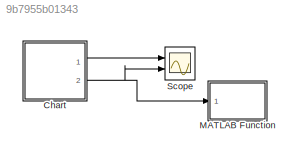
MODEL slx_9b7955b01343
KIND model
CONFIG AbsTol = auto
CONFIG EnableMultiTasking = off
CONFIG FixedStep = auto
CONFIG MaxStep = auto
CONFIG MinStep = auto
CONFIG RelTol = 1e-3
CONFIG SampleTimeConstraint = Unconstrained
CONFIG Solver = VariableStepAuto
CONFIG SolverName = VariableStepAuto
CONFIG StartTime = 0.0
CONFIG StopTime = 40.0
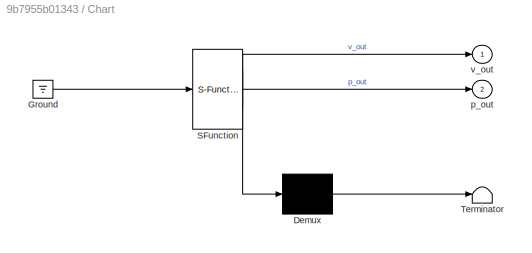
BLOCK [SubSystem] Chart
  ErrorFcn = Stateflow.Translate.translate
  PermitHierarchicalResolution = ExplicitOnly
  Ports = [0, 2]
  RequestExecContextInheritance = off
  SFBlockType = Chart
  TreatAsAtomicUnit = on
BLOCK [Demux] Chart/ Demux 
  Outputs = 1
  Ports = [1, 1]
BLOCK [Ground] Chart/ Ground 
BLOCK [S-Function] Chart/ SFunction 
  EnableBusSupport = on
  FunctionName = sf_sfun
  PortCounts = [1 3]
  Ports = [1, 3]
  SFcnIsStateOwnerBlock = off
  SFunctionDeploymentMode = off
  Tag = Stateflow S-Function 3
BLOCK [Terminator] Chart/ Terminator 
BLOCK [Outport] Chart/p_out
  Port = 2
BLOCK [Outport] Chart/v_out
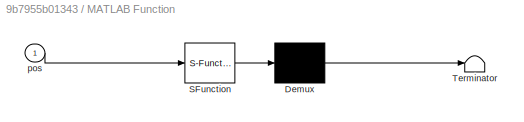
BLOCK [SubSystem] MATLAB Function
  ErrorFcn = Stateflow.Translate.translate
  PermitHierarchicalResolution = ExplicitOnly
  Ports = [1]
  RequestExecContextInheritance = off
  SFBlockType = MATLAB Function
  TreatAsAtomicUnit = on
BLOCK [Demux] MATLAB Function/ Demux 
  Outputs = 1
  Ports = [1, 1]
BLOCK [S-Function] MATLAB Function/ SFunction 
  EnableBusSupport = on
  FunctionName = sf_sfun
  PortCounts = [1 1]
  Ports = [1, 1]
  SFcnIsStateOwnerBlock = off
  SFunctionDeploymentMode = off
  Tag = Stateflow S-Function 2
BLOCK [Terminator] MATLAB Function/ Terminator 
BLOCK [Inport] MATLAB Function/pos
BLOCK [Scope] Scope
  Floating = off
  NumInputPorts = 2
  Ports = [2]
  ScopeSpecificationString = Simulink.scopes.TimeScopeBlockCfg('CurrentConfiguration', extmgr.ConfigurationSet(extmgr.Configuration('Core','General UI',true),extmgr.Configuration('Core','Source UI',true),extmgr.Configuration('Sources','WiredSimulink',true),extmgr.Configuration('Visuals','Time Domain',true,'SerializedDisplays',{struct('MinYLimReal','-0.845','MaxYLimReal','1.205','YLabelReal','','MinYLimMag','0.00000','MaxYLimM...<+2062ch>
LINE Chart:1 -> Scope:1
NET Chart:2 -> MATLAB Function:1, Scope:2
note: NET lines group one-source signal fan-out (src -> all destinations, sorted); 1:1 wires keep LINE
CHART MATLAB Function states=1 transitions=1
  STATE_LABEL 'eML_blk_kernel()'
  STATE_LABEL "SCRIPT:\nfunction plottable(pos)\n\nfigure (1)\nplot (pos(1,1), pos(1,2),'ro')\n% hold on\n% BorX=[0 0 2 2 0];\n% BorY=[1 0 0 1 1];\n% plot(BorX,BorY);\n% hold on;\n% area(BorX,BorY)\ntitle('\\bfBilliard Table','FontSize',14)\nxlim([0 2])\nylim ([0 1])\ngrid on\nbox on\n\n\n"
CHART Chart states=5 transitions=3
  STATE_LABEL 'Falling\ndu:\np_dot = v;\nv_dot = 0;\np_out = p;\nv_out = v;\n'
  STATE_LABEL 'initialize'
  STATE_LABEL 'SCRIPT:\nfunction initialize\n\np = [1 2]; %initial position of the ball in the board \nv = [1 1]; %initial velocity of the ball in x-y direction\ntableLen= 2; %length of the table\ntableWid= 1; %width of the table\nholesize = 0.05; %d= 5 cm\n\nend\n'
  STATE_LABEL 'resetposition'
  STATE_LABEL 'SCRIPT:\nfunction resetposition\n\nif p(1,1) < 0\n    p(1,1) = -p(1,1);\n    v(1,1) = -1*v(1,1);\n    v(1,2) = 1*v(1,2);\nelseif p(1,1) > tableLen\n    p(1,1) = 2*tableLen-p(1,1);\n    v(1,1) = -1*v(1,1);\n    v(1,2) = 1*v(1,2);\nend\nif p(1,2) < 0\n    p(1,2) = -p(1,2);\n    v(1,2) = -1*v(1,2);\n    v(1,1) = 1*v(1,1);\nelseif p(1,2) > tableWid\n    p(1,2) = 2*tableWid-p(1,2);\n    v(1,2) = -1*v(1,2);\n    v(1,1) = ...<+17ch>'
  STATE_LABEL 'yn = boundarycrossing'
  STATE_LABEL 'SCRIPT:\nfunction yn = boundarycrossing\n\nif  p(1,1) < 0 || p(1,1) > tableLen || ...\n    p(1,2) < 0 || p(1,2) > tableWid\n    \n    yn = 1;\n    return;\nend      \nyn = 0;\n'
  STATE_LABEL 'pocketed = inhole'
  STATE_LABEL 'SCRIPT:\nfunction pocketed = inhole\n\nif norm (p-[0 0]) < holesize\n    pocketed = 1;\nelseif norm (p-[tableLen 0]) < holesize\n    pocketed = 1;\nelseif norm (p-[0 tableWid]) < holesize\n    pocketed = 1;\nelseif norm (p-[tableLen tableWid]) < holesize\n    pocketed = 1;\nelse\n    pocketed = 0;\n    \nend\nend\n\n\n'
CHART  states=0 transitions=0
CHART  states=0 transitions=0
